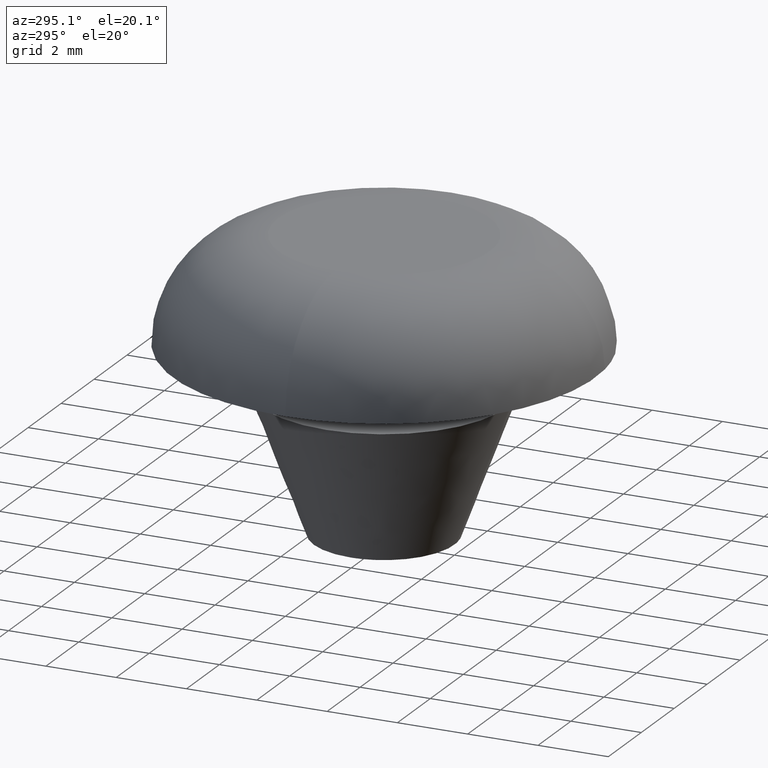
[diagram: clean part render]
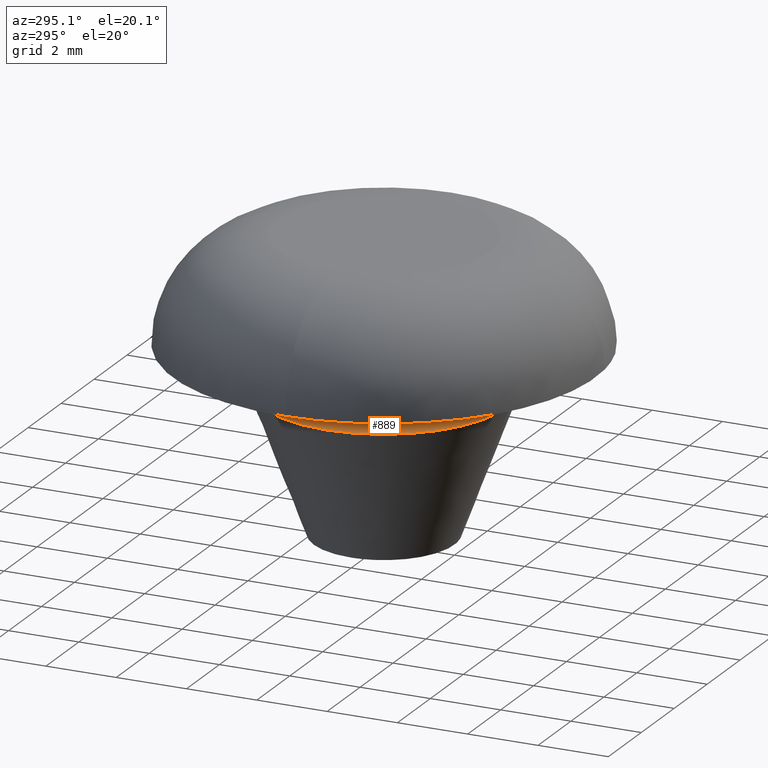
[diagram: same view with one face highlighted and labeled with its STEP entity id]
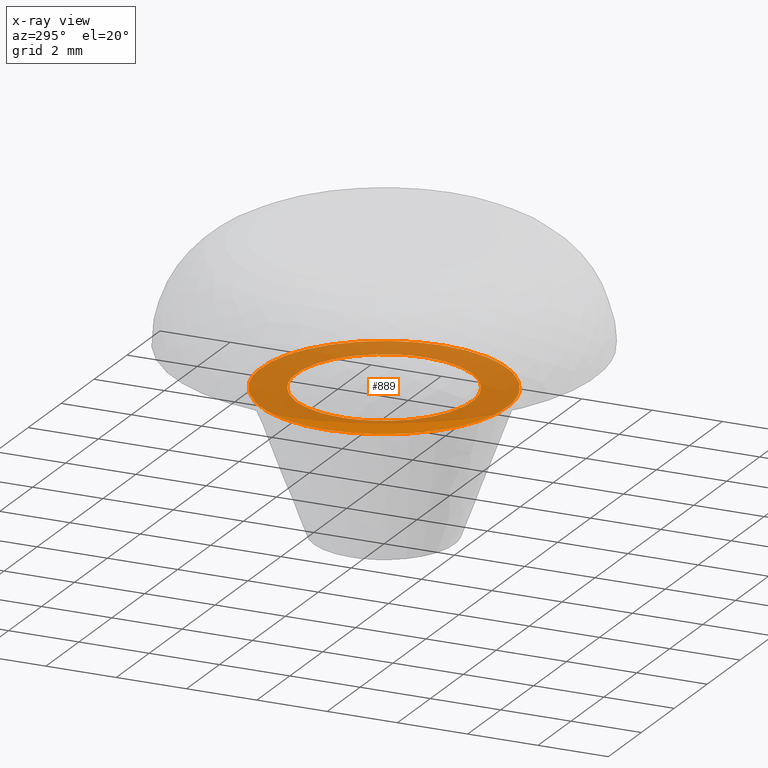
[diagram: x-ray of the same camera — body ghosted, the highlighted face saturated]
A machine part, auxiliary view. The second image highlights one B-rep face of the part: STEP entity #889.
The next image is the same camera in x-ray: the body ghosted, the highlighted face saturated — about 83% of this face is hidden behind the body in this view.
In plain terms, the highlighted face is a freeform B-spline surface patch.
Its self-contained STEP definition (entity closure, byte-faithful):
#286=CARTESIAN_POINT('',(0.152618161030179,-2.495337191025206,4.0));
#287=VERTEX_POINT('',#286);
#293=CARTESIAN_POINT('',(2.500000000000000,0.0,4.0));
#294=VERTEX_POINT('',#293);
#295=CARTESIAN_POINT('',(2.500000000000000,0.0,4.0));
#296=CARTESIAN_POINT('',(2.500000000000000,-2.351768177273230,4.0));
#297=CARTESIAN_POINT('',(0.152618161030179,-2.495337191025206,4.0));
#305=(BOUNDED_CURVE()B_SPLINE_CURVE(2,(#295,#296,#297),.UNSPECIFIED.,.F.,.U.)B_SPLINE_CURVE_WITH_KNOTS((3,3),(0.500000000000000,0.739333182671493),.UNSPECIFIED.)CURVE()GEOMETRIC_REPRESENTATION_ITEM()RATIONAL_B_SPLINE_CURVE((1.0,0.719603735033914,0.976072514096089))REPRESENTATION_ITEM(''));
#306=EDGE_CURVE('',#294,#287,#305,.T.);
#308=CARTESIAN_POINT('',(-0.295083890616084,2.482524017506368,4.0));
#309=VERTEX_POINT('',#308);
#310=CARTESIAN_POINT('',(-0.295083890616084,2.482524017506368,4.000000000000000));
#311=CARTESIAN_POINT('',(-0.148059442151872,2.500000000000000,4.000000000000001));
#312=CARTESIAN_POINT('',(0.0,2.500000000000000,4.0));
#313=CARTESIAN_POINT('',(2.500000000000000,2.500000000000000,4.000000000000000));
#314=CARTESIAN_POINT('',(2.500000000000000,0.0,4.0));
#322=(BOUNDED_CURVE()B_SPLINE_CURVE(2,(#310,#311,#312,#313,#314),.UNSPECIFIED.,.F.,.U.)B_SPLINE_CURVE_WITH_KNOTS((3,2,3),(0.229562588976323,0.250000000000000,0.500000000000000),.UNSPECIFIED.)CURVE()GEOMETRIC_REPRESENTATION_ITEM()RATIONAL_B_SPLINE_CURVE((0.956026980495667,0.976056083604247,1.0,0.707106781186548,1.0))REPRESENTATION_ITEM(''));
#323=EDGE_CURVE('',#309,#294,#322,.T.);
#367=CARTESIAN_POINT('',(-2.500000000000000,0.0,4.0));
#368=VERTEX_POINT('',#367);
#369=CARTESIAN_POINT('',(-2.500000000000000,0.0,4.0));
#370=CARTESIAN_POINT('',(-2.500000000000000,2.220437842529027,4.0));
#371=CARTESIAN_POINT('',(-0.295083890616084,2.482524017506368,4.000000000000000));
#379=(BOUNDED_CURVE()B_SPLINE_CURVE(2,(#369,#370,#371),.UNSPECIFIED.,.F.,.U.)B_SPLINE_CURVE_WITH_KNOTS((3,3),(0.0,0.229562588976323),.UNSPECIFIED.)CURVE()GEOMETRIC_REPRESENTATION_ITEM()RATIONAL_B_SPLINE_CURVE((1.0,0.731050697582300,0.956026980495667))REPRESENTATION_ITEM(''));
#380=EDGE_CURVE('',#368,#309,#379,.T.);
#382=CARTESIAN_POINT('',(0.152618161030179,-2.495337191025206,4.0));
#383=CARTESIAN_POINT('',(0.076380309873996,-2.500000000000000,4.000000000000000));
#384=CARTESIAN_POINT('',(0.0,-2.500000000000000,4.0));
#385=CARTESIAN_POINT('',(-2.500000000000000,-2.500000000000000,4.000000000000000));
#386=CARTESIAN_POINT('',(-2.500000000000000,0.0,4.0));
#394=(BOUNDED_CURVE()B_SPLINE_CURVE(2,(#382,#383,#384,#385,#386),.UNSPECIFIED.,.F.,.U.)B_SPLINE_CURVE_WITH_KNOTS((3,2,3),(0.739333182671493,0.750000000000000,1.0),.UNSPECIFIED.)CURVE()GEOMETRIC_REPRESENTATION_ITEM()RATIONAL_B_SPLINE_CURVE((0.976072514096089,0.987503046152634,1.0,0.707106781186548,1.0))REPRESENTATION_ITEM(''));
#395=EDGE_CURVE('',#287,#368,#394,.T.);
#472=CARTESIAN_POINT('',(0.274605915676212,-3.489210439869961,3.999999200999094));
#473=VERTEX_POINT('',#472);
#479=CARTESIAN_POINT('',(-3.500000000000000,0.0,4.0));
#480=VERTEX_POINT('',#479);
#481=CARTESIAN_POINT('',(0.274605915676211,-3.489210439869960,3.999999200999094));
#482=CARTESIAN_POINT('',(0.137514924516652,-3.500000000000000,4.000000000000001));
#483=CARTESIAN_POINT('',(0.0,-3.500000000000000,4.0));
#484=CARTESIAN_POINT('',(-3.500000000000000,-3.500000000000000,4.0));
#485=CARTESIAN_POINT('',(-3.500000000000000,0.0,4.0));
#493=(BOUNDED_CURVE()B_SPLINE_CURVE(2,(#481,#482,#483,#484,#485),.UNSPECIFIED.,.F.,.U.)B_SPLINE_CURVE_WITH_KNOTS((3,2,3),(0.736331344646406,0.750000000000000,1.0),.UNSPECIFIED.)CURVE()GEOMETRIC_REPRESENTATION_ITEM()RATIONAL_B_SPLINE_CURVE((0.969723448024941,0.983986174146537,1.0,0.707106781186547,1.0))REPRESENTATION_ITEM(''));
#494=EDGE_CURVE('',#473,#480,#493,.T.);
#496=CARTESIAN_POINT('',(-0.274605915676212,3.489210439869961,3.999999200999094));
#497=VERTEX_POINT('',#496);
#498=CARTESIAN_POINT('',(-3.500000000000000,0.0,4.0));
#499=CARTESIAN_POINT('',(-3.500000000000000,3.235367554060421,4.000000000000000));
#500=CARTESIAN_POINT('',(-0.274605915676212,3.489210439869960,3.999999200999094));
#508=(BOUNDED_CURVE()B_SPLINE_CURVE(2,(#498,#499,#500),.UNSPECIFIED.,.F.,.U.)B_SPLINE_CURVE_WITH_KNOTS((3,3),(0.0,0.236331344646406),.UNSPECIFIED.)CURVE()GEOMETRIC_REPRESENTATION_ITEM()RATIONAL_B_SPLINE_CURVE((1.0,0.723120607040011,0.969723448024941))REPRESENTATION_ITEM(''));
#509=EDGE_CURVE('',#480,#497,#508,.T.);
#559=CARTESIAN_POINT('',(3.500000000000000,0.0,4.0));
#560=VERTEX_POINT('',#559);
#561=CARTESIAN_POINT('',(-0.274605915676212,3.489210439869960,3.999999200999094));
#562=CARTESIAN_POINT('',(-0.137514924516652,3.500000000000000,4.000000000000001));
#563=CARTESIAN_POINT('',(0.0,3.500000000000000,4.0));
#564=CARTESIAN_POINT('',(3.500000000000000,3.500000000000000,4.0));
#565=CARTESIAN_POINT('',(3.500000000000000,0.0,4.0));
#573=(BOUNDED_CURVE()B_SPLINE_CURVE(2,(#561,#562,#563,#564,#565),.UNSPECIFIED.,.F.,.U.)B_SPLINE_CURVE_WITH_KNOTS((3,2,3),(0.236331344646406,0.250000000000000,0.500000000000000),.UNSPECIFIED.)CURVE()GEOMETRIC_REPRESENTATION_ITEM()RATIONAL_B_SPLINE_CURVE((0.969723448024941,0.983986174146537,1.0,0.707106781186547,1.0))REPRESENTATION_ITEM(''));
#574=EDGE_CURVE('',#497,#560,#573,.T.);
#576=CARTESIAN_POINT('',(3.500000000000000,0.0,4.0));
#577=CARTESIAN_POINT('',(3.500000000000000,-3.235367554060421,4.000000000000000));
#578=CARTESIAN_POINT('',(0.274605915676211,-3.489210439869960,3.999999200999094));
#586=(BOUNDED_CURVE()B_SPLINE_CURVE(2,(#576,#577,#578),.UNSPECIFIED.,.F.,.U.)B_SPLINE_CURVE_WITH_KNOTS((3,3),(0.500000000000000,0.736331344646406),.UNSPECIFIED.)CURVE()GEOMETRIC_REPRESENTATION_ITEM()RATIONAL_B_SPLINE_CURVE((1.0,0.723120607040011,0.969723448024941))REPRESENTATION_ITEM(''));
#587=EDGE_CURVE('',#560,#473,#586,.T.);
#872=CARTESIAN_POINT('',(-3.849649986432642,-3.848581412402090,4.0));
#873=CARTESIAN_POINT('',(3.849650174187273,-3.848581412402090,4.0));
#874=CARTESIAN_POINT('',(-3.849649986432642,3.848581287232335,4.0));
#875=CARTESIAN_POINT('',(3.849650174187273,3.848581287232335,4.0));
#876=B_SPLINE_SURFACE_WITH_KNOTS('',1,1,((#872,#874),(#873,#875)),.UNSPECIFIED.,.F.,.F.,.U.,(2,2),(2,2),(0.0,7.699300160619915),(0.0,7.697162699634425),.UNSPECIFIED.);
#877=ORIENTED_EDGE('',*,*,#494,.F.);
#878=ORIENTED_EDGE('',*,*,#587,.F.);
#879=ORIENTED_EDGE('',*,*,#574,.F.);
#880=ORIENTED_EDGE('',*,*,#509,.F.);
#881=EDGE_LOOP('',(#877,#878,#879,#880));
#882=FACE_OUTER_BOUND('',#881,.T.);
#883=ORIENTED_EDGE('',*,*,#306,.T.);
#884=ORIENTED_EDGE('',*,*,#395,.T.);
#885=ORIENTED_EDGE('',*,*,#380,.T.);
#886=ORIENTED_EDGE('',*,*,#323,.T.);
#887=EDGE_LOOP('',(#883,#884,#885,#886));
#888=FACE_BOUND('',#887,.T.);
#889=ADVANCED_FACE('',(#882,#888),#876,.T.);